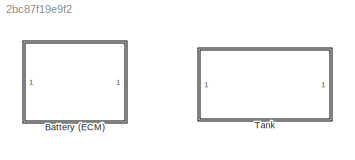
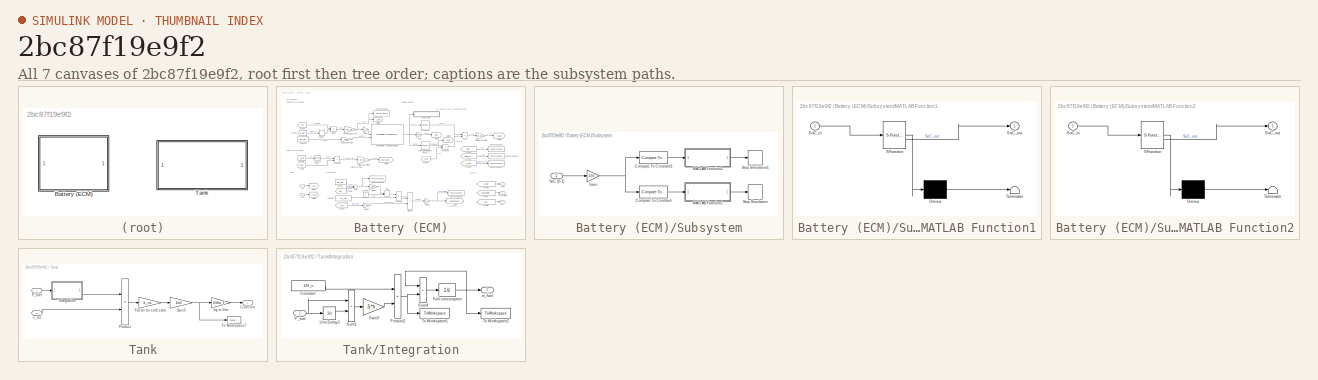
[diagram: thumbnail index - all 7 canvases of the model, root first then tree order]
MODEL slx_2bc87f19e9f2
KIND library
CONFIG AbsTol = auto
CONFIG EnableMultiTasking = off
CONFIG FixedStep = auto
CONFIG MaxStep = auto
CONFIG MinStep = auto
CONFIG RelTol = 1e-3
CONFIG SampleTimeConstraint = Unconstrained
CONFIG SolverName = VariableStepAuto
CONFIG StartTime = 0.0
CONFIG StopTime = 10.0
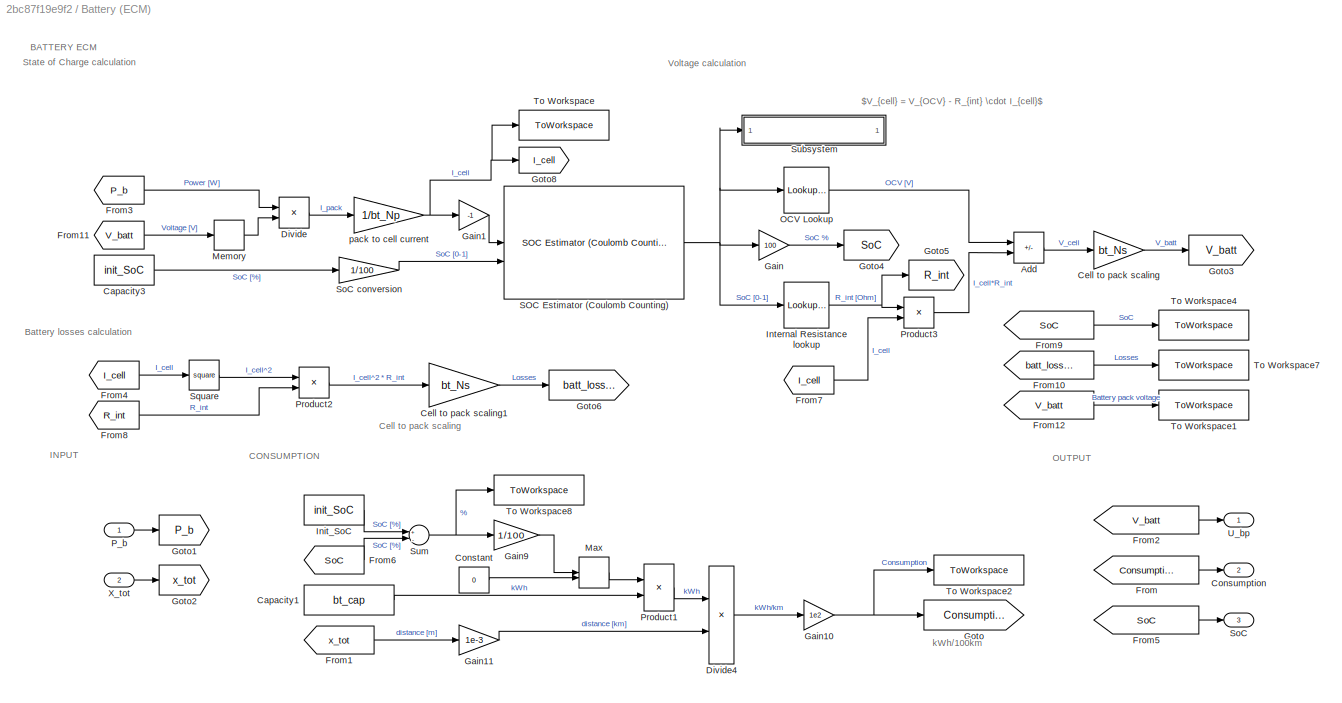
BLOCK [SubSystem] Battery (ECM)
  InitFcn = % Check if ECMdata already exists in the workspace existingVars = evalin('base', 'who'); if ismember('ECMdata', existingVars) % If ECMdata exists, load it into the mask parameters ECMdata = evalin('base', 'ECMdata'); % Check if values are set, if not set defaults if isempty(get_param(gcb, 'bt_vol')) set_param(gcb, 'bt_vol', num2str(ECMdata.bt_vol)); end if isempty(get_param(gcb, 'bt_cap')) set_par...<+263ch>
BLOCK [Sum] Battery (ECM)/Add
  IconShape = rectangular
  Inputs = +-
BLOCK [Constant] Battery (ECM)/Capacity1
  Value = bt_cap
BLOCK [Constant] Battery (ECM)/Capacity3
  Value = init_SoC
BLOCK [Gain] Battery (ECM)/Cell to pack scaling
  Gain = bt_Ns
BLOCK [Gain] Battery (ECM)/Cell to pack scaling1
  Gain = bt_Ns
BLOCK [Constant] Battery (ECM)/Constant
  Value = 0
BLOCK [Outport] Battery (ECM)/Consumption
  Port = 2
BLOCK [Product] Battery (ECM)/Divide
  Inputs = */
BLOCK [Product] Battery (ECM)/Divide4
  Inputs = */
BLOCK [From] Battery (ECM)/From
  GotoTag = Consumption
BLOCK [From] Battery (ECM)/From1
  GotoTag = x_tot
BLOCK [From] Battery (ECM)/From10
  GotoTag = batt_losses
BLOCK [From] Battery (ECM)/From11
  GotoTag = V_batt
BLOCK [From] Battery (ECM)/From12
  GotoTag = V_batt
BLOCK [From] Battery (ECM)/From2
  GotoTag = V_batt
BLOCK [From] Battery (ECM)/From3
  GotoTag = P_b
BLOCK [From] Battery (ECM)/From4
  GotoTag = I_cell
BLOCK [From] Battery (ECM)/From5
  GotoTag = SoC
BLOCK [From] Battery (ECM)/From6
  GotoTag = SoC
BLOCK [From] Battery (ECM)/From7
  GotoTag = I_cell
BLOCK [From] Battery (ECM)/From8
  GotoTag = R_int
BLOCK [From] Battery (ECM)/From9
  GotoTag = SoC
BLOCK [Gain] Battery (ECM)/Gain
  Gain = 100
BLOCK [Gain] Battery (ECM)/Gain1
  Gain = -1
BLOCK [Gain] Battery (ECM)/Gain10
  Gain = 1e2
BLOCK [Gain] Battery (ECM)/Gain11
  Gain = 1e-3
BLOCK [Gain] Battery (ECM)/Gain9
  Gain = 1/100
BLOCK [Goto] Battery (ECM)/Goto
  GotoTag = Consumption
BLOCK [Goto] Battery (ECM)/Goto1
  GotoTag = P_b
BLOCK [Goto] Battery (ECM)/Goto2
  GotoTag = x_tot
BLOCK [Goto] Battery (ECM)/Goto3
  GotoTag = V_batt
BLOCK [Goto] Battery (ECM)/Goto4
  GotoTag = SoC
BLOCK [Goto] Battery (ECM)/Goto5
  GotoTag = R_int
BLOCK [Goto] Battery (ECM)/Goto6
  GotoTag = batt_losses
BLOCK [Goto] Battery (ECM)/Goto8
  GotoTag = I_cell
BLOCK [Constant] Battery (ECM)/Init_SoC
  Value = init_SoC
BLOCK [Lookup_n-D] Battery (ECM)/Internal Resistance lookup
  BreakpointsForDimension1 = SoC_breakpoints
  InputPortMap = u0
  InternalRulePriority = Speed
  NumberOfTableDimensions = 1
  RndMeth = Simplest
  Table = Internal_Resistance
BLOCK [MinMax] Battery (ECM)/Max
  Function = max
  Inputs = 2
BLOCK [Memory] Battery (ECM)/Memory
  InheritSampleTime = on
  InitialCondition = bt_vol
  LinearizeAsDelay = on
BLOCK [Lookup_n-D] Battery (ECM)/OCV Lookup
  BreakpointsForDimension1 = SoC_breakpoints
  InputPortMap = u0
  InternalRulePriority = Speed
  NumberOfTableDimensions = 1
  RndMeth = Simplest
  Table = OCV
BLOCK [Inport] Battery (ECM)/P_b
BLOCK [Product] Battery (ECM)/Product1
BLOCK [Product] Battery (ECM)/Product2
BLOCK [Product] Battery (ECM)/Product3
BLOCK [Reference] Battery (ECM)/SOC Estimator (Coulomb Counting)  REF=BatteryEstimators/SOC Estimator
(Coulomb Counting)
  LibrarySourceBlock = batt_sl_lib/Estimators/SOC Estimator\n(Coulomb Counting)
  SourceBlock = BatteryEstimators/SOC Estimator\n(Coulomb Counting)
  SourceType = SOC Estimator (Coulomb Counting)
BLOCK [Outport] Battery (ECM)/SoC
  Port = 3
BLOCK [Gain] Battery (ECM)/SoC conversion
  Gain = 1/100
BLOCK [Math] Battery (ECM)/Square
  Operator = square
BLOCK [SubSystem] Battery (ECM)/Subsystem
  ShowPortLabels = none
BLOCK [Reference] Battery (ECM)/Subsystem/Compare To Constant  REF=simulink/Logic and Bit
Operations/Compare
To Constant
  SourceBlock = simulink/Logic and Bit\nOperations/Compare\nTo Constant
  SourceType = Compare To Constant
BLOCK [Reference] Battery (ECM)/Subsystem/Compare To Constant1  REF=simulink/Logic and Bit
Operations/Compare
To Constant
  SourceBlock = simulink/Logic and Bit\nOperations/Compare\nTo Constant
  SourceType = Compare To Constant
BLOCK [Gain] Battery (ECM)/Subsystem/Gain
  Gain = 100
BLOCK [SubSystem] Battery (ECM)/Subsystem/MATLAB Function1
  ErrorFcn = Stateflow.Translate.translate
  PermitHierarchicalResolution = ExplicitOnly
  SFBlockType = MATLAB Function
  TreatAsAtomicUnit = on
BLOCK [Demux] Battery (ECM)/Subsystem/MATLAB Function1/ Demux 
  Outputs = 1
BLOCK [S-Function] Battery (ECM)/Subsystem/MATLAB Function1/ SFunction 
  EnableBusSupport = off
  FunctionName = sf_sfun
  PortCounts = [1 2]
  SFcnIsStateOwnerBlock = off
  SFunctionDeploymentMode = off
  Tag = Stateflow S-Function 4
BLOCK [Terminator] Battery (ECM)/Subsystem/MATLAB Function1/ Terminator 
BLOCK [Inport] Battery (ECM)/Subsystem/MATLAB Function1/SoC_in
BLOCK [Outport] Battery (ECM)/Subsystem/MATLAB Function1/SoC_out
BLOCK [SubSystem] Battery (ECM)/Subsystem/MATLAB Function2
  ErrorFcn = Stateflow.Translate.translate
  PermitHierarchicalResolution = ExplicitOnly
  SFBlockType = MATLAB Function
  TreatAsAtomicUnit = on
BLOCK [Demux] Battery (ECM)/Subsystem/MATLAB Function2/ Demux 
  Outputs = 1
BLOCK [S-Function] Battery (ECM)/Subsystem/MATLAB Function2/ SFunction 
  EnableBusSupport = off
  FunctionName = sf_sfun
  PortCounts = [1 2]
  SFcnIsStateOwnerBlock = off
  SFunctionDeploymentMode = off
  Tag = Stateflow S-Function 5
BLOCK [Terminator] Battery (ECM)/Subsystem/MATLAB Function2/ Terminator 
BLOCK [Inport] Battery (ECM)/Subsystem/MATLAB Function2/SoC_in
BLOCK [Outport] Battery (ECM)/Subsystem/MATLAB Function2/SoC_out
BLOCK [Inport] Battery (ECM)/Subsystem/SoC [0-1]
BLOCK [Stop] Battery (ECM)/Subsystem/Stop Simulation
BLOCK [Stop] Battery (ECM)/Subsystem/Stop Simulation1
BLOCK [Sum] Battery (ECM)/Sum
  Inputs = +|-
BLOCK [ToWorkspace] Battery (ECM)/To Workspace
  FixptAsFi = on
  MaxDataPoints = inf
  SampleTime = -1
  VariableName = I_cell
BLOCK [ToWorkspace] Battery (ECM)/To Workspace1
  FixptAsFi = on
  MaxDataPoints = inf
  SampleTime = -1
  VariableName = U_bp
BLOCK [ToWorkspace] Battery (ECM)/To Workspace2
  FixptAsFi = on
  MaxDataPoints = inf
  SampleTime = -1
  VariableName = Consumption
BLOCK [ToWorkspace] Battery (ECM)/To Workspace4
  FixptAsFi = on
  MaxDataPoints = inf
  SampleTime = -1
  VariableName = SoC
BLOCK [ToWorkspace] Battery (ECM)/To Workspace7
  FixptAsFi = on
  MaxDataPoints = inf
  SampleTime = -1
  VariableName = Losses
BLOCK [ToWorkspace] Battery (ECM)/To Workspace8
  FixptAsFi = on
  MaxDataPoints = inf
  SampleTime = -1
  VariableName = delta_SoC
BLOCK [Outport] Battery (ECM)/U_bp
BLOCK [Inport] Battery (ECM)/X_tot
  Port = 2
BLOCK [Gain] Battery (ECM)/pack to cell current
  Gain = 1/bt_Np
BLOCK [SubSystem] Tank
  Tag = tank
BLOCK [Gain] Tank/Factor for cold start
  Gain = k_cs
  OutDataTypeStr = Inherit: Same as input
  ParamDataTypeStr = Inherit: Same as input
  SaturateOnIntegerOverflow = on
BLOCK [Gain] Tank/Gain3
  Gain = 1e5
  NameLocation = top
  OutDataTypeStr = Inherit: Same as input
  ParamDataTypeStr = Inherit: Same as input
  SaturateOnIntegerOverflow = on
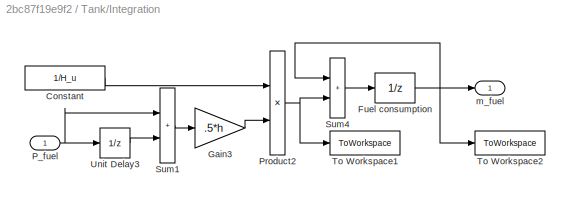
BLOCK [SubSystem] Tank/Integration
BLOCK [Constant] Tank/Integration/Constant
  Value = 1/H_u
BLOCK [UnitDelay] Tank/Integration/Fuel consumption
  SampleTime = h
BLOCK [Gain] Tank/Integration/Gain3
  Gain = .5*h
  OutDataTypeStr = Inherit: Same as input
  ParamDataTypeStr = Inherit: Same as input
  SaturateOnIntegerOverflow = on
BLOCK [Inport] Tank/Integration/P_fuel
BLOCK [Product] Tank/Integration/Product2
  InputSameDT = on
  OutDataTypeStr = Inherit: Same as first input
  RndMeth = Zero
  SaturateOnIntegerOverflow = on
BLOCK [Sum] Tank/Integration/Sum1
  IconShape = rectangular
  InputSameDT = on
  OutDataTypeStr = Inherit: Same as first input
  SaturateOnIntegerOverflow = on
BLOCK [Sum] Tank/Integration/Sum4
  IconShape = rectangular
  InputSameDT = on
  OutDataTypeStr = Inherit: Same as first input
  SaturateOnIntegerOverflow = on
BLOCK [ToWorkspace] Tank/Integration/To Workspace1
  MaxDataPoints = inf
  NameLocation = top
  SampleTime = -1
  VariableName = m_dot_fuel
BLOCK [ToWorkspace] Tank/Integration/To Workspace2
  MaxDataPoints = inf
  NameLocation = top
  SampleTime = -1
  VariableName = m_fuel
BLOCK [UnitDelay] Tank/Integration/Unit Delay3
  SampleTime = h
BLOCK [Outport] Tank/Integration/m_fuel
  InitialOutput = 0
BLOCK [Outport] Tank/L//100 km
  InitialOutput = 0
BLOCK [Inport] Tank/P_fuel
BLOCK [Product] Tank/Product
  InputSameDT = on
  Inputs = */
  OutDataTypeStr = Inherit: Same as first input
  RndMeth = Zero
  SaturateOnIntegerOverflow = on
BLOCK [ToWorkspace] Tank/To Workspace7
  MaxDataPoints = inf
  NameLocation = top
  SampleTime = -1
  VariableName = m_kg
BLOCK [Gain] Tank/kg to liter
  Gain = 1/rho_f
BLOCK [Inport] Tank/x_tot
  Port = 2
ANNOTATION Battery (ECM): $V_{cell} = V_{OCV} - R_{int} \cdot I_{cell}$
ANNOTATION Battery (ECM): BATTERY ECM
ANNOTATION Battery (ECM): Battery losses calculation
ANNOTATION Battery (ECM): CONSUMPTION
ANNOTATION Battery (ECM): Cell to pack scaling
ANNOTATION Battery (ECM): INPUT
ANNOTATION Battery (ECM): OUTPUT
ANNOTATION Battery (ECM): State of Charge calculation
ANNOTATION Battery (ECM): Voltage calculation
ANNOTATION Battery (ECM): kWh/100km
LINE Battery (ECM)/Add:1 -> Battery (ECM)/Cell to pack scaling:1
LINE Battery (ECM)/Capacity1:1 -> Battery (ECM)/Product1:2
LINE Battery (ECM)/Capacity3:1 -> Battery (ECM)/SoC conversion:1
LINE Battery (ECM)/Cell to pack scaling1:1 -> Battery (ECM)/Goto6:1
LINE Battery (ECM)/Cell to pack scaling:1 -> Battery (ECM)/Goto3:1
LINE Battery (ECM)/Constant:1 -> Battery (ECM)/Max:2
LINE Battery (ECM)/Divide4:1 -> Battery (ECM)/Gain10:1
LINE Battery (ECM)/Divide:1 -> Battery (ECM)/pack to cell current:1
LINE Battery (ECM)/From10:1 -> Battery (ECM)/To Workspace7:1
LINE Battery (ECM)/From11:1 -> Battery (ECM)/Memory:1
LINE Battery (ECM)/From12:1 -> Battery (ECM)/To Workspace1:1
LINE Battery (ECM)/From1:1 -> Battery (ECM)/Gain11:1
LINE Battery (ECM)/From2:1 -> Battery (ECM)/U_bp:1
LINE Battery (ECM)/From3:1 -> Battery (ECM)/Divide:1
LINE Battery (ECM)/From4:1 -> Battery (ECM)/Square:1
LINE Battery (ECM)/From5:1 -> Battery (ECM)/SoC:1
LINE Battery (ECM)/From6:1 -> Battery (ECM)/Sum:2
LINE Battery (ECM)/From7:1 -> Battery (ECM)/Product3:2
LINE Battery (ECM)/From8:1 -> Battery (ECM)/Product2:2
LINE Battery (ECM)/From9:1 -> Battery (ECM)/To Workspace4:1
LINE Battery (ECM)/From:1 -> Battery (ECM)/Consumption:1
NET Battery (ECM)/Gain10:1 -> Battery (ECM)/Goto:1, Battery (ECM)/To Workspace2:1
LINE Battery (ECM)/Gain11:1 -> Battery (ECM)/Divide4:2
LINE Battery (ECM)/Gain1:1 -> Battery (ECM)/SOC Estimator (Coulomb Counting):1
LINE Battery (ECM)/Gain9:1 -> Battery (ECM)/Max:1
LINE Battery (ECM)/Gain:1 -> Battery (ECM)/Goto4:1
LINE Battery (ECM)/Init_SoC:1 -> Battery (ECM)/Sum:1
NET Battery (ECM)/Internal Resistance lookup:1 -> Battery (ECM)/Goto5:1, Battery (ECM)/Product3:1
LINE Battery (ECM)/Max:1 -> Battery (ECM)/Product1:1
LINE Battery (ECM)/Memory:1 -> Battery (ECM)/Divide:2
LINE Battery (ECM)/OCV Lookup:1 -> Battery (ECM)/Add:1
LINE Battery (ECM)/P_b:1 -> Battery (ECM)/Goto1:1
LINE Battery (ECM)/Product1:1 -> Battery (ECM)/Divide4:1
LINE Battery (ECM)/Product2:1 -> Battery (ECM)/Cell to pack scaling1:1
LINE Battery (ECM)/Product3:1 -> Battery (ECM)/Add:2
NET Battery (ECM)/SOC Estimator (Coulomb Counting):1 -> Battery (ECM)/Gain:1, Battery (ECM)/Internal Resistance lookup:1, Battery (ECM)/OCV Lookup:1, Battery (ECM)/Subsystem:1
LINE Battery (ECM)/SoC conversion:1 -> Battery (ECM)/SOC Estimator (Coulomb Counting):2
LINE Battery (ECM)/Square:1 -> Battery (ECM)/Product2:1
LINE Battery (ECM)/Subsystem/Compare To Constant1:1 -> Battery (ECM)/Subsystem/MATLAB Function2:1
LINE Battery (ECM)/Subsystem/Compare To Constant:1 -> Battery (ECM)/Subsystem/MATLAB Function1:1
NET Battery (ECM)/Subsystem/Gain:1 -> Battery (ECM)/Subsystem/Compare To Constant1:1, Battery (ECM)/Subsystem/Compare To Constant:1
LINE Battery (ECM)/Subsystem/MATLAB Function1:1 -> Battery (ECM)/Subsystem/Stop Simulation:1
LINE Battery (ECM)/Subsystem/MATLAB Function2:1 -> Battery (ECM)/Subsystem/Stop Simulation1:1
LINE Battery (ECM)/Subsystem/SoC [0-1]:1 -> Battery (ECM)/Subsystem/Gain:1
NET Battery (ECM)/Sum:1 -> Battery (ECM)/Gain9:1, Battery (ECM)/To Workspace8:1
LINE Battery (ECM)/X_tot:1 -> Battery (ECM)/Goto2:1
NET Battery (ECM)/pack to cell current:1 -> Battery (ECM)/Gain1:1, Battery (ECM)/Goto8:1, Battery (ECM)/To Workspace:1
LINE Tank/Factor for cold start:1 -> Tank/Gain3:1
NET Tank/Gain3:1 -> Tank/To Workspace7:1, Tank/kg to liter:1
LINE Tank/Integration/Constant:1 -> Tank/Integration/Product2:1
NET Tank/Integration/Fuel consumption:1 -> Tank/Integration/Sum4:1, Tank/Integration/To Workspace2:1, Tank/Integration/m_fuel:1
LINE Tank/Integration/Gain3:1 -> Tank/Integration/Product2:2
NET Tank/Integration/P_fuel:1 -> Tank/Integration/Sum1:1, Tank/Integration/Unit Delay3:1
NET Tank/Integration/Product2:1 -> Tank/Integration/Sum4:2, Tank/Integration/To Workspace1:1
LINE Tank/Integration/Sum1:1 -> Tank/Integration/Gain3:1
LINE Tank/Integration/Sum4:1 -> Tank/Integration/Fuel consumption:1
LINE Tank/Integration/Unit Delay3:1 -> Tank/Integration/Sum1:2
LINE Tank/Integration:1 -> Tank/Product:1
LINE Tank/P_fuel:1 -> Tank/Integration:1
LINE Tank/Product:1 -> Tank/Factor for cold start:1
LINE Tank/kg to liter:1 -> Tank/L//100 km:1
LINE Tank/x_tot:1 -> Tank/Product:2
note: NET lines group one-source signal fan-out (src -> all destinations, sorted); 1:1 wires keep LINE
CHART Battery (ECM)/Subsystem/MATLAB Function2 states=1 transitions=1
  STATE_LABEL 'eML_blk_kernel()'
  STATE_LABEL "SCRIPT:\nfunction SoC_out = full(SoC_in)\n\nif SoC_in~=0\n    disp('Simulation stopped due to Battery Full.')\nend\n\nSoC_out = SoC_in;\n"
CHART Battery (ECM)/Subsystem/MATLAB Function1 states=1 transitions=1
  STATE_LABEL 'eML_blk_kernel()'
  STATE_LABEL "SCRIPT:\nfunction SoC_out = empty(SoC_in)\n\nif SoC_in~=0\n    disp('Simulation stopped due to Battery Empty.')\nend\n\nSoC_out = SoC_in;\n"
CHART  states=0 transitions=0
CHART  states=0 transitions=0
